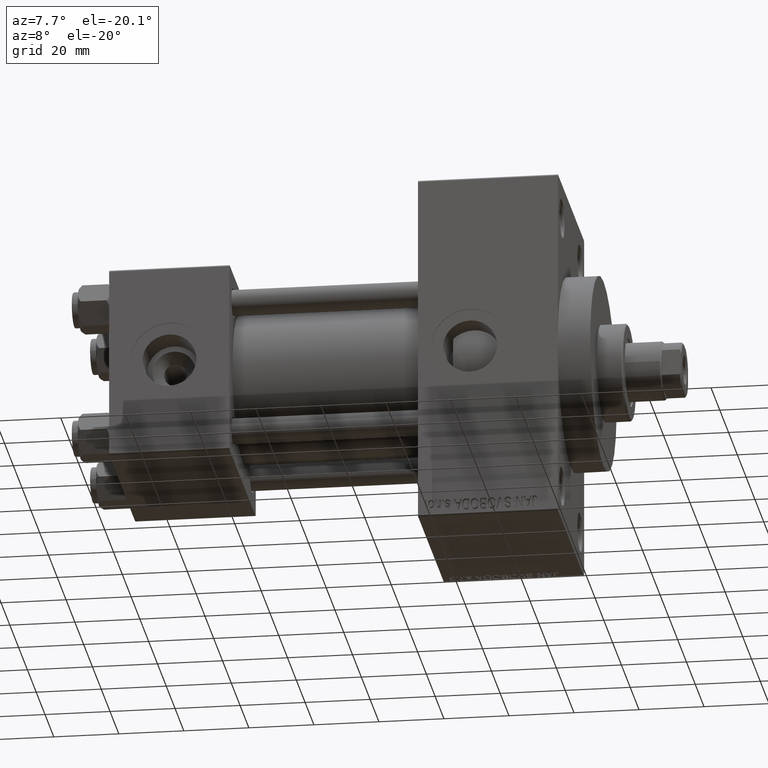
[diagram: clean part render]
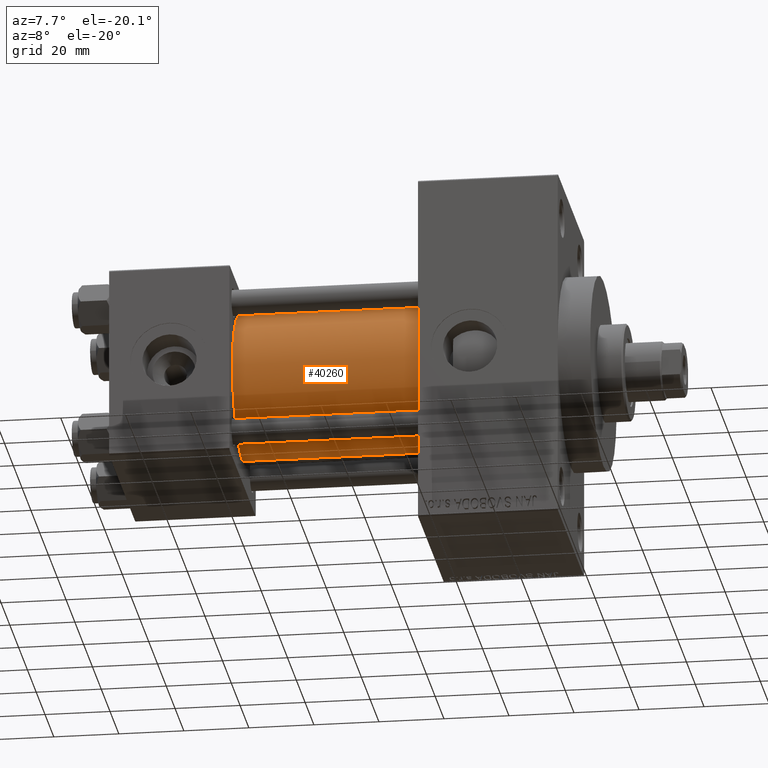
[diagram: same view with one face highlighted and labeled with its STEP entity id]
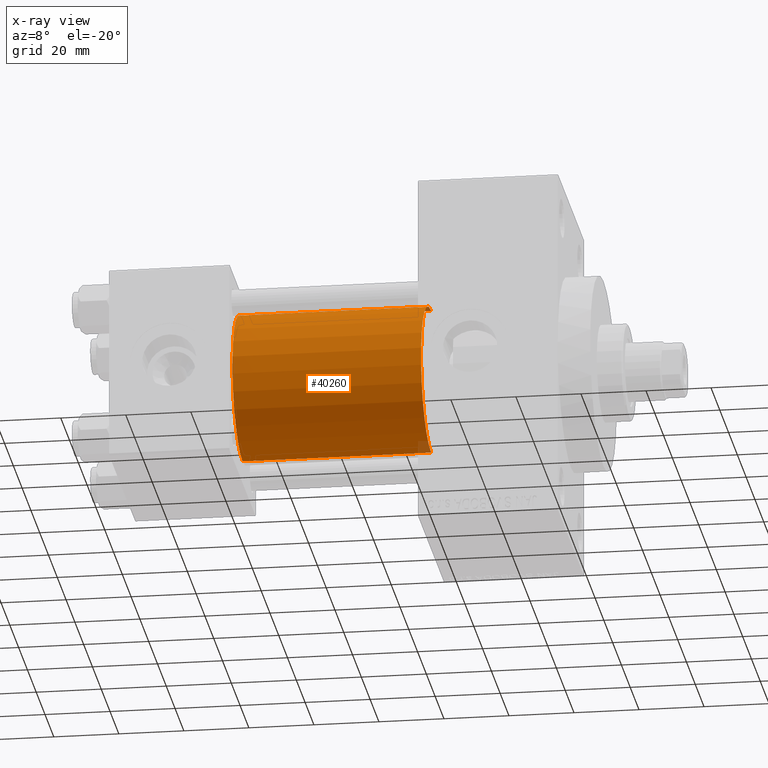
[diagram: x-ray of the same camera — body ghosted, the highlighted face saturated]
A machine part, auxiliary view. The second image highlights one B-rep face of the part: STEP entity #40260.
The next image is the same camera in x-ray: the body ghosted, the highlighted face saturated — about 1% of this face is hidden behind the body in this view.
In plain terms, the highlighted cylindrical surface (partial cylindrical patch) has radius 23 mm, axis along (-1, -0, -0).
Its self-contained STEP definition (entity closure, byte-faithful):
#568 = CYLINDRICAL_SURFACE ( 'NONE', #34077, 23.00000000000000000 ) ;
#800 = DIRECTION ( 'NONE',  ( 0.000000000000000000, 0.000000000000000000, 1.000000000000000000 ) ) ;
#3439 = VECTOR ( 'NONE', #23863, 1000.000000000000000 ) ;
#3897 = FACE_OUTER_BOUND ( 'NONE', #14914, .T. ) ;
#4503 = AXIS2_PLACEMENT_3D ( 'NONE', #39455, #15088, #7655 ) ;
#5556 = VECTOR ( 'NONE', #43991, 1000.000000000000000 ) ;
#5879 = ORIENTED_EDGE ( 'NONE', *, *, #46267, .F. ) ;
#7006 = CARTESIAN_POINT ( 'NONE',  ( 95.00000000000000000, -2.602085213965210642E-15, 0.000000000000000000 ) ) ;
#7655 = DIRECTION ( 'NONE',  ( 0.000000000000000000, 0.000000000000000000, -1.000000000000000000 ) ) ;
#10301 = CARTESIAN_POINT ( 'NONE',  ( 37.00000000000000000, -2.602085213965210642E-15, 0.000000000000000000 ) ) ;
#14831 = DIRECTION ( 'NONE',  ( 1.000000000000000000, -0.000000000000000000, 0.000000000000000000 ) ) ;
#14914 = EDGE_LOOP ( 'NONE', ( #5879, #36501, #46639, #47132 ) ) ;
#15088 = DIRECTION ( 'NONE',  ( 1.000000000000000000, 0.000000000000000000, 0.000000000000000000 ) ) ;
#15416 = VERTEX_POINT ( 'NONE', #41962 ) ;
#16649 = EDGE_CURVE ( 'NONE', #40042, #15416, #25125, .T. ) ;
#17630 = VERTEX_POINT ( 'NONE', #28207 ) ;
#18442 = CARTESIAN_POINT ( 'NONE',  ( 95.00000000000000000, -2.602085213965210642E-15, 23.00000000000000000 ) ) ;
#20019 = CIRCLE ( 'NONE', #38323, 23.00000000000000000 ) ;
#20826 = CARTESIAN_POINT ( 'NONE',  ( 37.00000000000000000, 2.146024240737012665E-16, -23.00000000000000000 ) ) ;
#21833 = VERTEX_POINT ( 'NONE', #20826 ) ;
#22533 = LINE ( 'NONE', #18442, #5556 ) ;
#23863 = DIRECTION ( 'NONE',  ( -1.000000000000000000, -0.000000000000000000, -0.000000000000000000 ) ) ;
#24897 = DIRECTION ( 'NONE',  ( 0.000000000000000000, 0.000000000000000000, 1.000000000000000000 ) ) ;
#25125 = CIRCLE ( 'NONE', #4503, 23.00000000000000000 ) ;
#28207 = CARTESIAN_POINT ( 'NONE',  ( 37.00000000000000000, -2.602085213965210642E-15, 23.00000000000000000 ) ) ;
#29309 = CARTESIAN_POINT ( 'NONE',  ( 95.00000000000000000, -2.602085213965210642E-15, 23.00000000000000000 ) ) ;
#31639 = EDGE_CURVE ( 'NONE', #17630, #21833, #20019, .T. ) ;
#32664 = EDGE_CURVE ( 'NONE', #40042, #17630, #22533, .T. ) ;
#32830 = DIRECTION ( 'NONE',  ( -1.000000000000000000, -0.000000000000000000, -0.000000000000000000 ) ) ;
#34077 = AXIS2_PLACEMENT_3D ( 'NONE', #7006, #32830, #800 ) ;
#34842 = CARTESIAN_POINT ( 'NONE',  ( 95.00000000000000000, 2.146024240737012665E-16, -23.00000000000000000 ) ) ;
#36501 = ORIENTED_EDGE ( 'NONE', *, *, #16649, .F. ) ;
#38323 = AXIS2_PLACEMENT_3D ( 'NONE', #10301, #14831, #24897 ) ;
#38644 = LINE ( 'NONE', #34842, #3439 ) ;
#39455 = CARTESIAN_POINT ( 'NONE',  ( 95.00000000000000000, -2.602085213965210642E-15, 0.000000000000000000 ) ) ;
#40042 = VERTEX_POINT ( 'NONE', #29309 ) ;
#40260 = ADVANCED_FACE ( 'NONE', ( #3897 ), #568, .T. ) ;
#41962 = CARTESIAN_POINT ( 'NONE',  ( 95.00000000000000000, 2.146024240737012665E-16, -23.00000000000000000 ) ) ;
#43991 = DIRECTION ( 'NONE',  ( -1.000000000000000000, -0.000000000000000000, -0.000000000000000000 ) ) ;
#46267 = EDGE_CURVE ( 'NONE', #15416, #21833, #38644, .T. ) ;
#46639 = ORIENTED_EDGE ( 'NONE', *, *, #32664, .T. ) ;
#47132 = ORIENTED_EDGE ( 'NONE', *, *, #31639, .T. ) ;